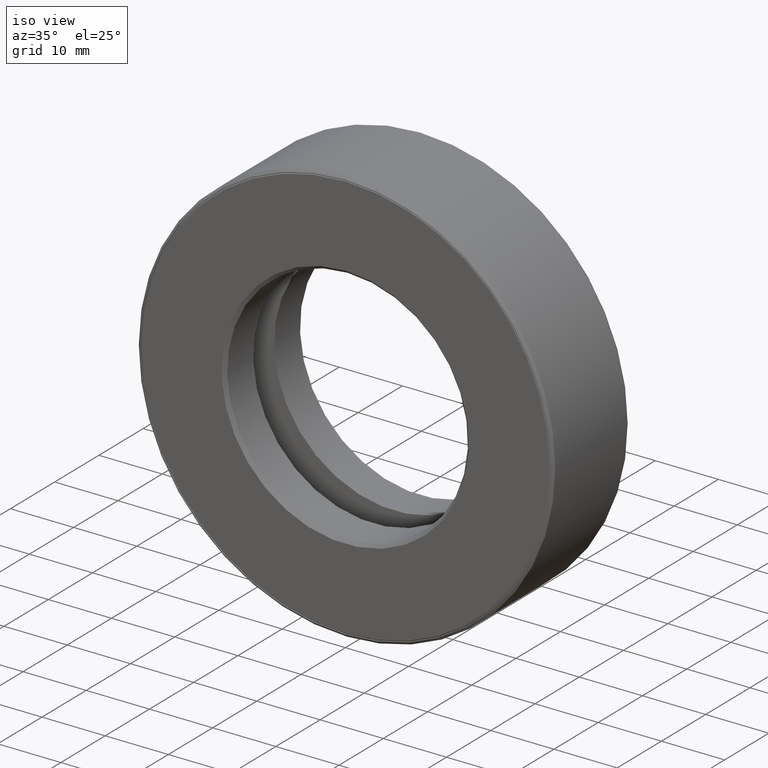
[diagram: clean part render]
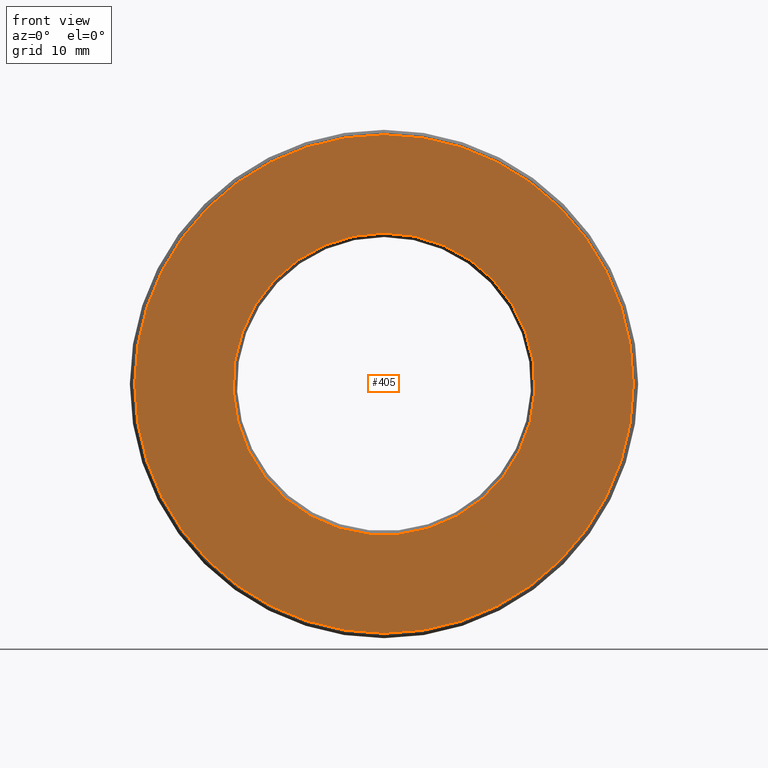
[diagram: tour spotlight — one face highlighted and labeled with its STEP entity id]
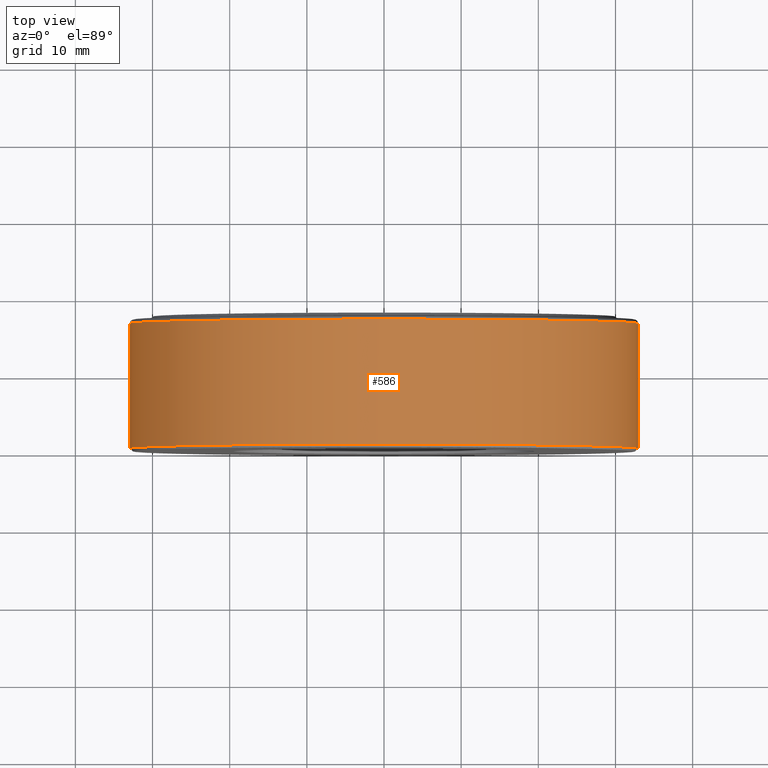
[diagram: tour spotlight — one face highlighted and labeled with its STEP entity id]
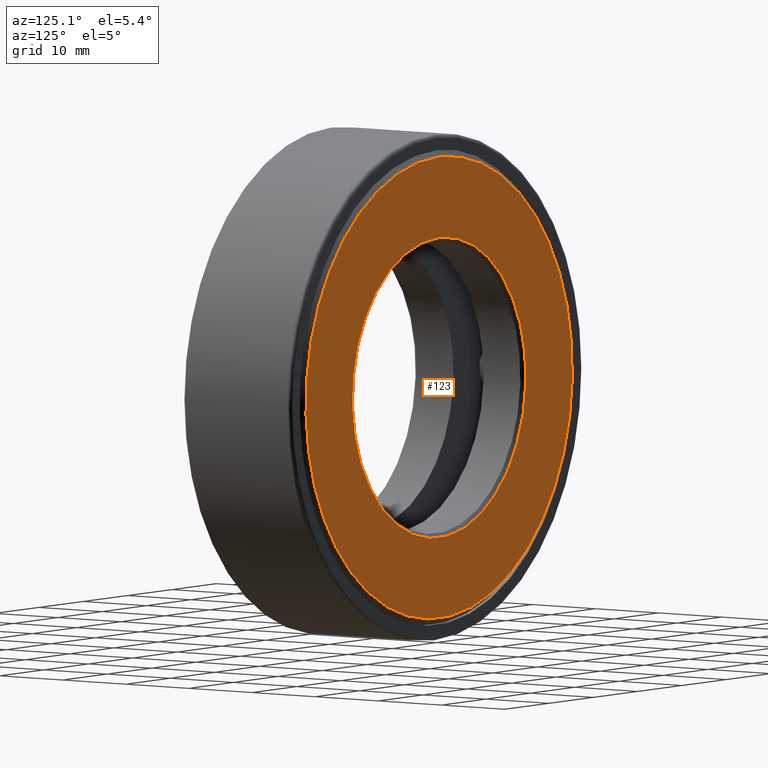
[diagram: tour spotlight — one face highlighted and labeled with its STEP entity id]
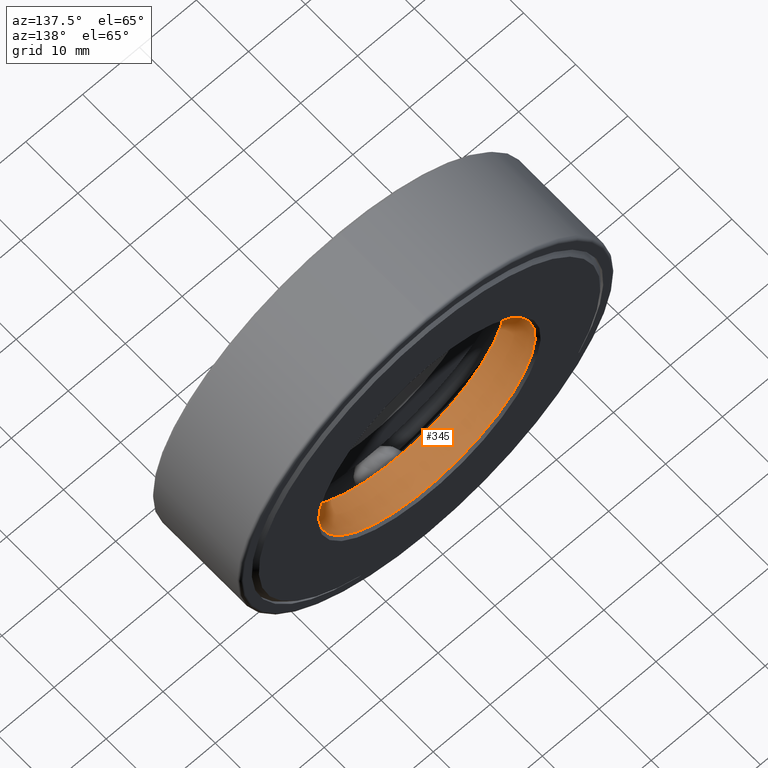
[diagram: tour spotlight — one face highlighted and labeled with its STEP entity id]
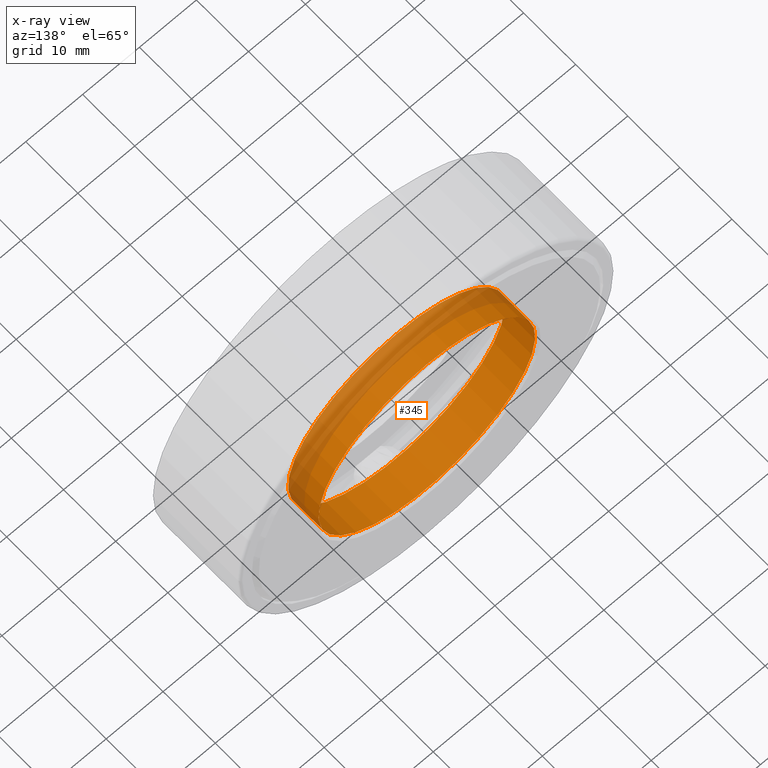
[diagram: x-ray of the same camera — body ghosted, this tour face saturated]
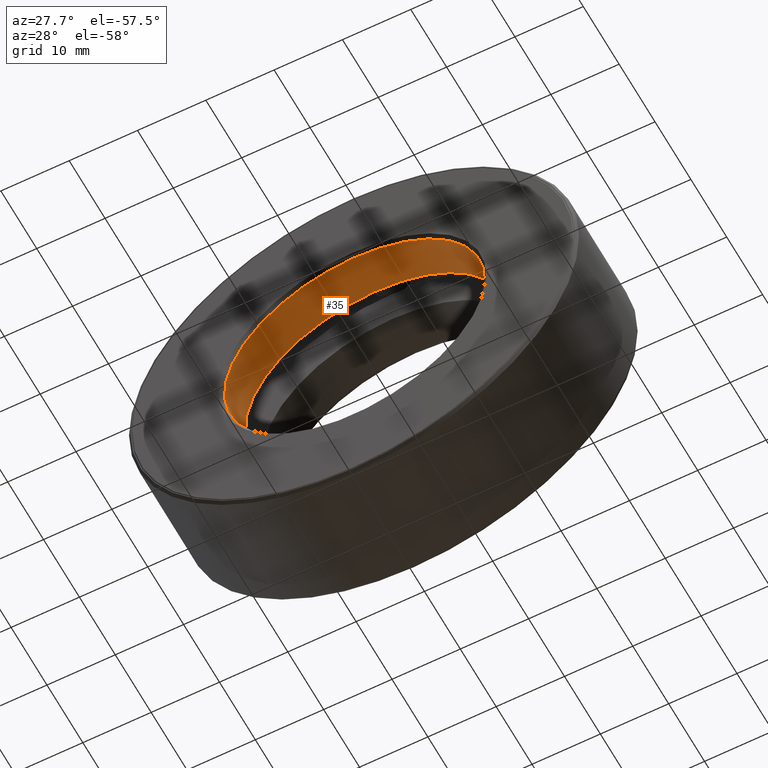
[diagram: tour spotlight — one face highlighted and labeled with its STEP entity id]
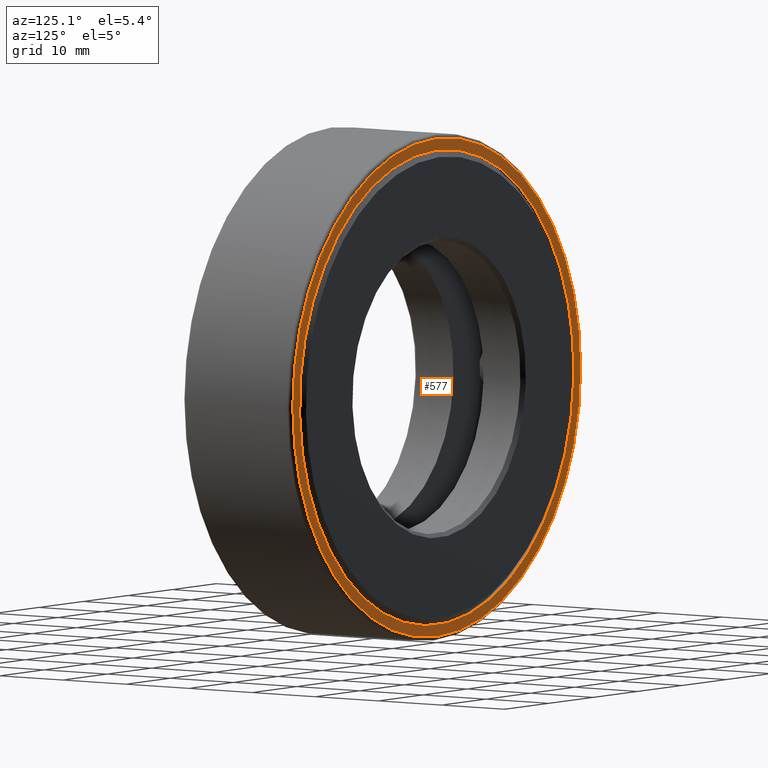
[diagram: tour spotlight — one face highlighted and labeled with its STEP entity id]
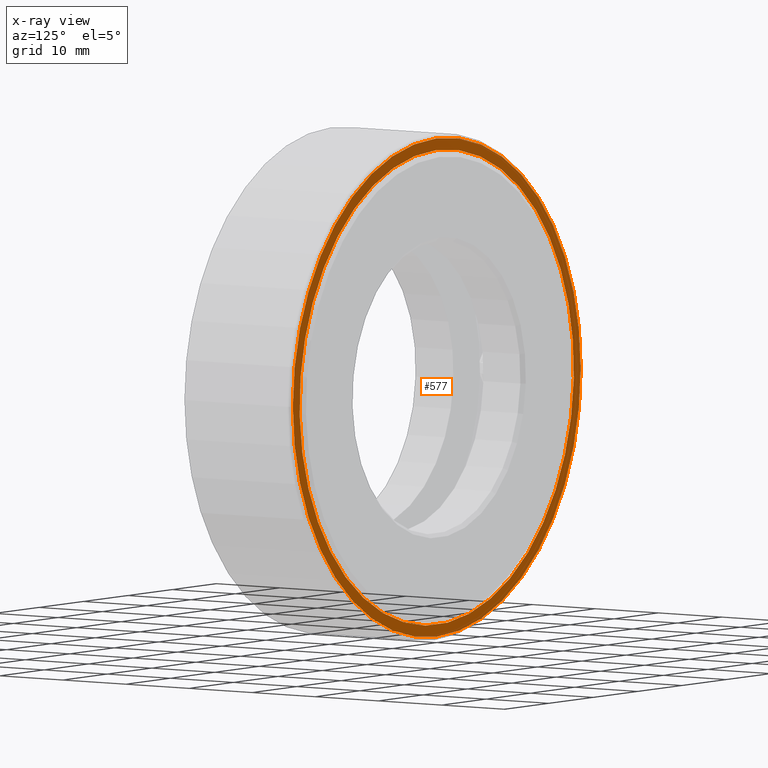
[diagram: x-ray of the same camera — body ghosted, this tour face saturated]
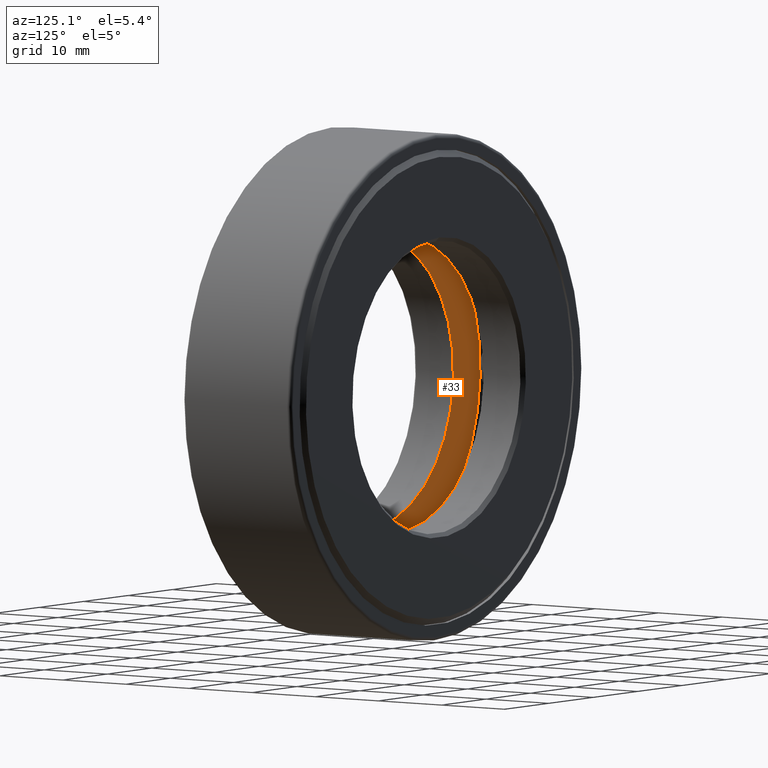
[diagram: tour spotlight — one face highlighted and labeled with its STEP entity id]
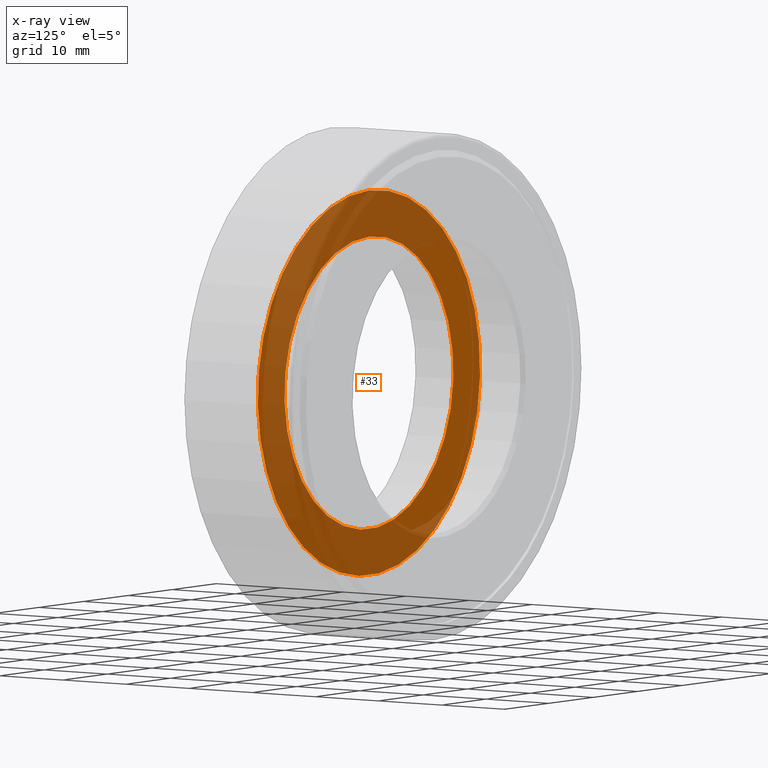
[diagram: x-ray of the same camera — body ghosted, this tour face saturated]
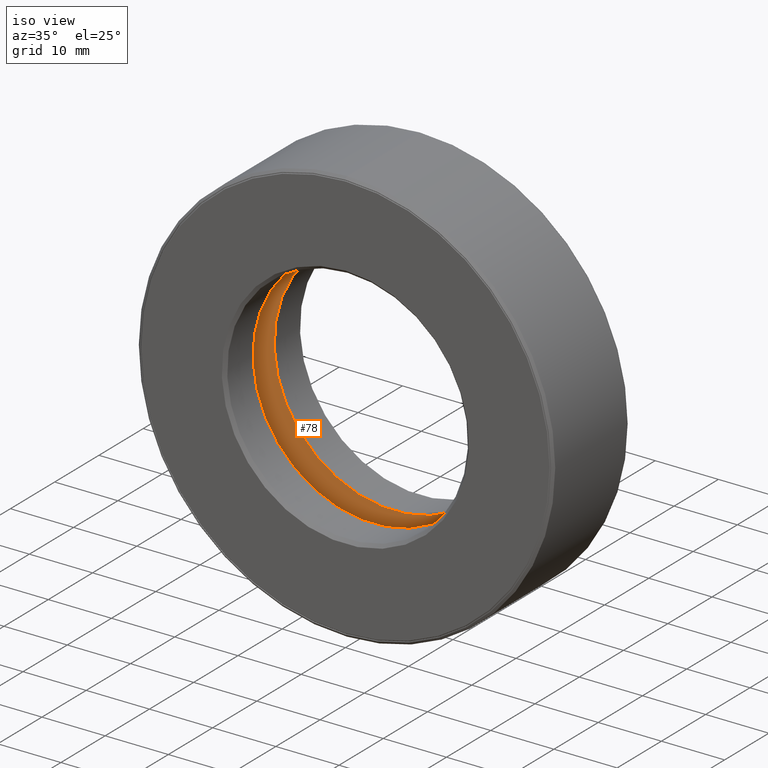
[diagram: tour spotlight — one face highlighted and labeled with its STEP entity id]
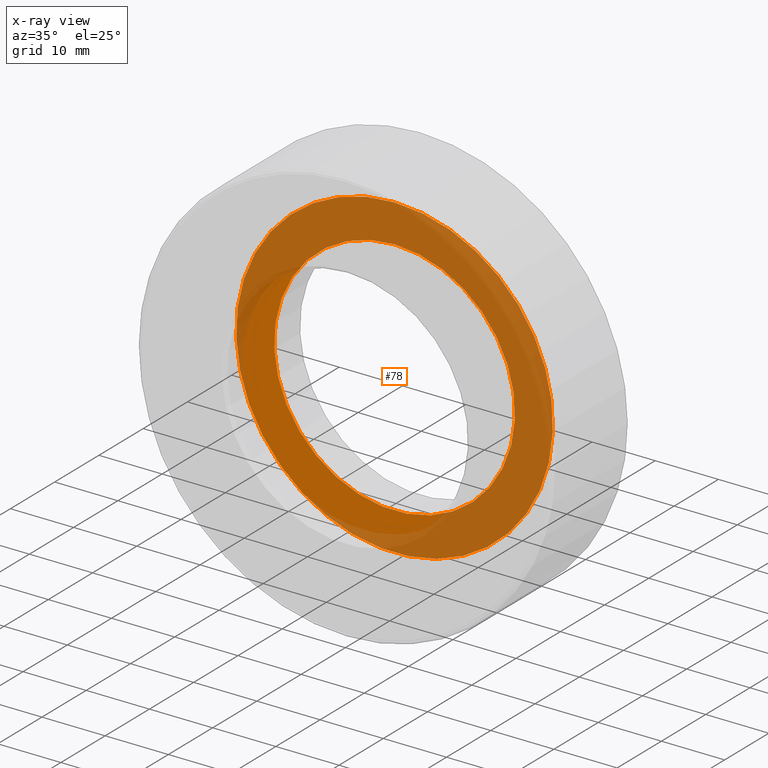
[diagram: x-ray of the same camera — body ghosted, this tour face saturated]
A machine part: a face-by-face anatomy tour. The part has 28 B-rep faces; the first image is the clean iso view, then the 8 largest visible faces are spotlighted one at a time (largest first), each with its STEP entity span.

Face 1 — front view, entity #405. In plain terms, the highlighted planar face has unit normal (-0, 1, 0).
Definition (entity closure, byte-faithful):
#38 = VERTEX_POINT ( 'NONE', #463 ) ;
#117 = EDGE_LOOP ( 'NONE', ( #387 ) ) ;
#132 = EDGE_LOOP ( 'NONE', ( #389 ) ) ;
#158 = DIRECTION ( 'NONE',  ( 0.0000000000000000000, 0.0000000000000000000, 1.000000000000000000 ) ) ;
#164 = PLANE ( 'NONE',  #444 ) ;
#166 = FACE_BOUND ( 'NONE', #117, .T. ) ;
#186 = CARTESIAN_POINT ( 'NONE',  ( 0.0000000000000000000, -6.936332796413168700E-017, 1.271874999999999900 ) ) ;
#198 = DIRECTION ( 'NONE',  ( 0.0000000000000000000, 0.0000000000000000000, 1.000000000000000000 ) ) ;
#199 = CARTESIAN_POINT ( 'NONE',  ( 0.0000000000000000000, 0.0000000000000000000, 0.0000000000000000000 ) ) ;
#240 = DIRECTION ( 'NONE',  ( -0.0000000000000000000, 1.000000000000000000, 0.0000000000000000000 ) ) ;
#261 = CIRCLE ( 'NONE', #352, 1.271874999999999900 ) ;
#274 = VERTEX_POINT ( 'NONE', #186 ) ;
#288 = CARTESIAN_POINT ( 'NONE',  ( -1.470819718715328300E-032, -3.468166398206584400E-017, 0.0000000000000000000 ) ) ;
#291 = DIRECTION ( 'NONE',  ( 0.0000000000000000000, 0.0000000000000000000, 1.000000000000000000 ) ) ;
#316 = AXIS2_PLACEMENT_3D ( 'NONE', #199, #432, #158 ) ;
#352 = AXIS2_PLACEMENT_3D ( 'NONE', #473, #574, #198 ) ;
#387 = ORIENTED_EDGE ( 'NONE', *, *, #447, .T. ) ;
#389 = ORIENTED_EDGE ( 'NONE', *, *, #433, .F. ) ;
#405 = ADVANCED_FACE ( 'NONE', ( #535, #166 ), #164, .F. ) ;
#432 = DIRECTION ( 'NONE',  ( -0.0000000000000000000, 1.000000000000000000, -0.0000000000000000000 ) ) ;
#433 = EDGE_CURVE ( 'NONE', #274, #274, #261, .T. ) ;
#444 = AXIS2_PLACEMENT_3D ( 'NONE', #288, #240, #291 ) ;
#447 = EDGE_CURVE ( 'NONE', #38, #38, #542, .T. ) ;
#463 = CARTESIAN_POINT ( 'NONE',  ( 0.0000000000000000000, 0.0000000000000000000, 0.7700000000000002400 ) ) ;
#473 = CARTESIAN_POINT ( 'NONE',  ( 0.0000000000000000000, -6.936332796413168700E-017, 0.0000000000000000000 ) ) ;
#535 = FACE_OUTER_BOUND ( 'NONE', #132, .T. ) ;
#542 = CIRCLE ( 'NONE', #316, 0.7700000000000002400 ) ;
#574 = DIRECTION ( 'NONE',  ( -0.0000000000000000000, 1.000000000000000000, -0.0000000000000000000 ) ) ;

Face 2 — top view, entity #586. In plain terms, the highlighted cylindrical surface (bore or boss wall) has radius 32.9406 mm, axis along (-0, 1, -0).
Definition (entity closure, byte-faithful):
#1 = DIRECTION ( 'NONE',  ( 0.0000000000000000000, 0.0000000000000000000, 1.000000000000000000 ) ) ;
#61 = DIRECTION ( 'NONE',  ( -0.0000000000000000000, 1.000000000000000000, -0.0000000000000000000 ) ) ;
#74 = CARTESIAN_POINT ( 'NONE',  ( 0.0000000000000000000, 0.0000000000000000000, 0.0000000000000000000 ) ) ;
#88 = CARTESIAN_POINT ( 'NONE',  ( 0.0000000000000000000, 0.6524999999999997500, 1.296875000000000000 ) ) ;
#106 = CARTESIAN_POINT ( 'NONE',  ( 0.0000000000000000000, 0.6524999999999997500, 0.0000000000000000000 ) ) ;
#116 = CARTESIAN_POINT ( 'NONE',  ( 0.0000000000000000000, 0.01499999999999984000, 1.296875000000000000 ) ) ;
#173 = AXIS2_PLACEMENT_3D ( 'NONE', #330, #195, #1 ) ;
#180 = ORIENTED_EDGE ( 'NONE', *, *, #317, .T. ) ;
#182 = AXIS2_PLACEMENT_3D ( 'NONE', #106, #61, #478 ) ;
#195 = DIRECTION ( 'NONE',  ( -0.0000000000000000000, 1.000000000000000000, -0.0000000000000000000 ) ) ;
#213 = DIRECTION ( 'NONE',  ( 0.0000000000000000000, 0.0000000000000000000, 1.000000000000000000 ) ) ;
#216 = FACE_OUTER_BOUND ( 'NONE', #509, .T. ) ;
#249 = DIRECTION ( 'NONE',  ( -0.0000000000000000000, 1.000000000000000000, -0.0000000000000000000 ) ) ;
#267 = CIRCLE ( 'NONE', #173, 1.296875000000000000 ) ;
#293 = VERTEX_POINT ( 'NONE', #116 ) ;
#311 = CYLINDRICAL_SURFACE ( 'NONE', #598, 1.296875000000000000 ) ;
#317 = EDGE_CURVE ( 'NONE', #293, #293, #267, .T. ) ;
#330 = CARTESIAN_POINT ( 'NONE',  ( 0.0000000000000000000, 0.01499999999999984000, 0.0000000000000000000 ) ) ;
#340 = FACE_OUTER_BOUND ( 'NONE', #600, .T. ) ;
#412 = EDGE_CURVE ( 'NONE', #571, #571, #579, .T. ) ;
#478 = DIRECTION ( 'NONE',  ( 0.0000000000000000000, 0.0000000000000000000, 1.000000000000000000 ) ) ;
#509 = EDGE_LOOP ( 'NONE', ( #180 ) ) ;
#571 = VERTEX_POINT ( 'NONE', #88 ) ;
#575 = ORIENTED_EDGE ( 'NONE', *, *, #412, .F. ) ;
#579 = CIRCLE ( 'NONE', #182, 1.296875000000000000 ) ;
#586 = ADVANCED_FACE ( 'NONE', ( #340, #216 ), #311, .T. ) ;
#598 = AXIS2_PLACEMENT_3D ( 'NONE', #74, #249, #213 ) ;
#600 = EDGE_LOOP ( 'NONE', ( #575 ) ) ;

Face 3 — auxiliary view, entity #123. In plain terms, the highlighted planar face has unit normal (-0, 1, 0).
Definition (entity closure, byte-faithful):
#6 = DIRECTION ( 'NONE',  ( -0.0000000000000000000, 1.000000000000000000, -0.0000000000000000000 ) ) ;
#7 = ORIENTED_EDGE ( 'NONE', *, *, #381, .T. ) ;
#14 = DIRECTION ( 'NONE',  ( 0.0000000000000000000, 0.0000000000000000000, 1.000000000000000000 ) ) ;
#42 = AXIS2_PLACEMENT_3D ( 'NONE', #236, #6, #14 ) ;
#48 = DIRECTION ( 'NONE',  ( 0.0000000000000000000, 0.0000000000000000000, 1.000000000000000000 ) ) ;
#79 = EDGE_LOOP ( 'NONE', ( #7 ) ) ;
#86 = CIRCLE ( 'NONE', #42, 0.7700000000000003500 ) ;
#94 = FACE_BOUND ( 'NONE', #369, .T. ) ;
#111 = CIRCLE ( 'NONE', #150, 1.181875000000000000 ) ;
#123 = ADVANCED_FACE ( 'NONE', ( #559, #94 ), #320, .T. ) ;
#150 = AXIS2_PLACEMENT_3D ( 'NONE', #339, #242, #342 ) ;
#222 = CARTESIAN_POINT ( 'NONE',  ( 0.0000000000000000000, 0.6875000000000000000, 0.0000000000000000000 ) ) ;
#236 = CARTESIAN_POINT ( 'NONE',  ( 0.0000000000000000000, 0.6875000000000000000, 0.0000000000000000000 ) ) ;
#242 = DIRECTION ( 'NONE',  ( -0.0000000000000000000, 1.000000000000000000, -0.0000000000000000000 ) ) ;
#320 = PLANE ( 'NONE',  #400 ) ;
#339 = CARTESIAN_POINT ( 'NONE',  ( 0.0000000000000000000, 0.6875000000000000000, 0.0000000000000000000 ) ) ;
#342 = DIRECTION ( 'NONE',  ( 0.0000000000000000000, 0.0000000000000000000, 1.000000000000000000 ) ) ;
#358 = CARTESIAN_POINT ( 'NONE',  ( 0.0000000000000000000, 0.6875000000000000000, 1.181875000000000000 ) ) ;
#367 = DIRECTION ( 'NONE',  ( -0.0000000000000000000, 1.000000000000000000, 0.0000000000000000000 ) ) ;
#369 = EDGE_LOOP ( 'NONE', ( #492 ) ) ;
#381 = EDGE_CURVE ( 'NONE', #407, #407, #111, .T. ) ;
#391 = EDGE_CURVE ( 'NONE', #436, #436, #86, .T. ) ;
#400 = AXIS2_PLACEMENT_3D ( 'NONE', #222, #367, #48 ) ;
#407 = VERTEX_POINT ( 'NONE', #358 ) ;
#436 = VERTEX_POINT ( 'NONE', #499 ) ;
#492 = ORIENTED_EDGE ( 'NONE', *, *, #391, .F. ) ;
#499 = CARTESIAN_POINT ( 'NONE',  ( 0.0000000000000000000, 0.6875000000000000000, 0.7700000000000003500 ) ) ;
#559 = FACE_OUTER_BOUND ( 'NONE', #79, .T. ) ;

Face 4 — auxiliary view, entity #345. An x-ray twin of the same camera follows (body ghosted, this face saturated) — the face is partly hidden behind the body. In plain terms, the highlighted cylindrical surface (bore or boss wall) has radius 19.05 mm, axis along (-0, 1, -0).
Definition (entity closure, byte-faithful):
#8 = EDGE_CURVE ( 'NONE', #547, #547, #39, .T. ) ;
#32 = CARTESIAN_POINT ( 'NONE',  ( 0.0000000000000000000, 0.4375000000000000000, 0.0000000000000000000 ) ) ;
#39 = CIRCLE ( 'NONE', #539, 0.7500000000000002200 ) ;
#70 = ORIENTED_EDGE ( 'NONE', *, *, #8, .F. ) ;
#77 = DIRECTION ( 'NONE',  ( -0.0000000000000000000, 1.000000000000000000, -0.0000000000000000000 ) ) ;
#98 = EDGE_CURVE ( 'NONE', #519, #519, #534, .T. ) ;
#99 = CARTESIAN_POINT ( 'NONE',  ( 0.0000000000000000000, 0.0000000000000000000, 0.0000000000000000000 ) ) ;
#113 = FACE_OUTER_BOUND ( 'NONE', #275, .T. ) ;
#177 = CARTESIAN_POINT ( 'NONE',  ( 0.0000000000000000000, 0.6674999999999995400, 0.7500000000000002200 ) ) ;
#227 = FACE_OUTER_BOUND ( 'NONE', #238, .T. ) ;
#238 = EDGE_LOOP ( 'NONE', ( #399 ) ) ;
#264 = CARTESIAN_POINT ( 'NONE',  ( 0.0000000000000000000, 0.6674999999999995400, 0.0000000000000000000 ) ) ;
#275 = EDGE_LOOP ( 'NONE', ( #70 ) ) ;
#301 = CARTESIAN_POINT ( 'NONE',  ( 0.0000000000000000000, 0.4375000000000000000, 0.7500000000000002200 ) ) ;
#318 = DIRECTION ( 'NONE',  ( 0.0000000000000000000, 0.0000000000000000000, 1.000000000000000000 ) ) ;
#345 = ADVANCED_FACE ( 'NONE', ( #227, #113 ), #421, .F. ) ;
#375 = AXIS2_PLACEMENT_3D ( 'NONE', #99, #468, #525 ) ;
#399 = ORIENTED_EDGE ( 'NONE', *, *, #98, .T. ) ;
#421 = CYLINDRICAL_SURFACE ( 'NONE', #375, 0.7500000000000002200 ) ;
#468 = DIRECTION ( 'NONE',  ( -0.0000000000000000000, 1.000000000000000000, -0.0000000000000000000 ) ) ;
#498 = DIRECTION ( 'NONE',  ( 0.0000000000000000000, 0.0000000000000000000, 1.000000000000000000 ) ) ;
#519 = VERTEX_POINT ( 'NONE', #177 ) ;
#525 = DIRECTION ( 'NONE',  ( 0.0000000000000000000, 0.0000000000000000000, 1.000000000000000000 ) ) ;
#534 = CIRCLE ( 'NONE', #593, 0.7500000000000002200 ) ;
#539 = AXIS2_PLACEMENT_3D ( 'NONE', #32, #77, #498 ) ;
#547 = VERTEX_POINT ( 'NONE', #301 ) ;
#593 = AXIS2_PLACEMENT_3D ( 'NONE', #264, #595, #318 ) ;
#595 = DIRECTION ( 'NONE',  ( -0.0000000000000000000, 1.000000000000000000, -0.0000000000000000000 ) ) ;

Face 5 — auxiliary view, entity #35. In plain terms, the highlighted cylindrical surface (bore or boss wall) has radius 19.05 mm, axis along (-0, 1, -0).
Definition (entity closure, byte-faithful):
#35 = ADVANCED_FACE ( 'NONE', ( #520, #241 ), #341, .F. ) ;
#49 = CARTESIAN_POINT ( 'NONE',  ( 0.0000000000000000000, 0.2499999999999999700, 0.0000000000000000000 ) ) ;
#80 = CIRCLE ( 'NONE', #488, 0.7500000000000001100 ) ;
#84 = DIRECTION ( 'NONE',  ( -0.0000000000000000000, 1.000000000000000000, -0.0000000000000000000 ) ) ;
#114 = VERTEX_POINT ( 'NONE', #380 ) ;
#120 = CIRCLE ( 'NONE', #331, 0.7500000000000002200 ) ;
#136 = CARTESIAN_POINT ( 'NONE',  ( 0.0000000000000000000, 0.0000000000000000000, 0.0000000000000000000 ) ) ;
#172 = DIRECTION ( 'NONE',  ( -0.0000000000000000000, 1.000000000000000000, -0.0000000000000000000 ) ) ;
#194 = EDGE_LOOP ( 'NONE', ( #518 ) ) ;
#202 = VERTEX_POINT ( 'NONE', #394 ) ;
#241 = FACE_OUTER_BOUND ( 'NONE', #419, .T. ) ;
#279 = EDGE_CURVE ( 'NONE', #202, #202, #120, .T. ) ;
#331 = AXIS2_PLACEMENT_3D ( 'NONE', #49, #383, #562 ) ;
#341 = CYLINDRICAL_SURFACE ( 'NONE', #564, 0.7500000000000002200 ) ;
#344 = DIRECTION ( 'NONE',  ( 0.0000000000000000000, 0.0000000000000000000, 1.000000000000000000 ) ) ;
#351 = ORIENTED_EDGE ( 'NONE', *, *, #279, .T. ) ;
#380 = CARTESIAN_POINT ( 'NONE',  ( 0.0000000000000000000, 0.02000000000000046900, 0.7500000000000001100 ) ) ;
#383 = DIRECTION ( 'NONE',  ( -0.0000000000000000000, 1.000000000000000000, -0.0000000000000000000 ) ) ;
#394 = CARTESIAN_POINT ( 'NONE',  ( 0.0000000000000000000, 0.2499999999999999700, 0.7500000000000002200 ) ) ;
#415 = DIRECTION ( 'NONE',  ( 0.0000000000000000000, 0.0000000000000000000, 1.000000000000000000 ) ) ;
#419 = EDGE_LOOP ( 'NONE', ( #351 ) ) ;
#446 = CARTESIAN_POINT ( 'NONE',  ( 0.0000000000000000000, 0.02000000000000046900, 0.0000000000000000000 ) ) ;
#488 = AXIS2_PLACEMENT_3D ( 'NONE', #446, #172, #344 ) ;
#518 = ORIENTED_EDGE ( 'NONE', *, *, #555, .F. ) ;
#520 = FACE_OUTER_BOUND ( 'NONE', #194, .T. ) ;
#555 = EDGE_CURVE ( 'NONE', #114, #114, #80, .T. ) ;
#562 = DIRECTION ( 'NONE',  ( 0.0000000000000000000, 0.0000000000000000000, 1.000000000000000000 ) ) ;
#564 = AXIS2_PLACEMENT_3D ( 'NONE', #136, #84, #415 ) ;

Face 6 — auxiliary view, entity #577. An x-ray twin of the same camera follows (body ghosted, this face saturated) — the face is partly hidden behind the body. In plain terms, the highlighted planar face has unit normal (0, -1, 0).
Definition (entity closure, byte-faithful):
#4 = CARTESIAN_POINT ( 'NONE',  ( 0.0000000000000000000, 0.6724999999999998800, 0.0000000000000000000 ) ) ;
#19 = CIRCLE ( 'NONE', #76, 1.216875000000000200 ) ;
#37 = ORIENTED_EDGE ( 'NONE', *, *, #423, .T. ) ;
#51 = VERTEX_POINT ( 'NONE', #90 ) ;
#76 = AXIS2_PLACEMENT_3D ( 'NONE', #4, #97, #145 ) ;
#90 = CARTESIAN_POINT ( 'NONE',  ( 0.0000000000000000000, 0.6724999999999998800, 1.276875000000000000 ) ) ;
#97 = DIRECTION ( 'NONE',  ( -0.0000000000000000000, 1.000000000000000000, -0.0000000000000000000 ) ) ;
#105 = ORIENTED_EDGE ( 'NONE', *, *, #235, .F. ) ;
#115 = DIRECTION ( 'NONE',  ( 0.0000000000000000000, 0.0000000000000000000, 1.000000000000000000 ) ) ;
#126 = PLANE ( 'NONE',  #409 ) ;
#145 = DIRECTION ( 'NONE',  ( 0.0000000000000000000, 0.0000000000000000000, 1.000000000000000000 ) ) ;
#205 = DIRECTION ( 'NONE',  ( -0.0000000000000000000, 1.000000000000000000, -0.0000000000000000000 ) ) ;
#235 = EDGE_CURVE ( 'NONE', #460, #460, #19, .T. ) ;
#273 = AXIS2_PLACEMENT_3D ( 'NONE', #529, #205, #115 ) ;
#276 = CIRCLE ( 'NONE', #273, 1.276875000000000000 ) ;
#346 = CARTESIAN_POINT ( 'NONE',  ( 0.0000000000000000000, 0.6724999999999998800, 0.0000000000000000000 ) ) ;
#409 = AXIS2_PLACEMENT_3D ( 'NONE', #346, #443, #543 ) ;
#423 = EDGE_CURVE ( 'NONE', #51, #51, #276, .T. ) ;
#443 = DIRECTION ( 'NONE',  ( 0.0000000000000000000, -1.000000000000000000, 0.0000000000000000000 ) ) ;
#460 = VERTEX_POINT ( 'NONE', #490 ) ;
#475 = EDGE_LOOP ( 'NONE', ( #37 ) ) ;
#484 = FACE_OUTER_BOUND ( 'NONE', #475, .T. ) ;
#490 = CARTESIAN_POINT ( 'NONE',  ( 0.0000000000000000000, 0.6724999999999998800, 1.216875000000000200 ) ) ;
#529 = CARTESIAN_POINT ( 'NONE',  ( 0.0000000000000000000, 0.6724999999999998800, 0.0000000000000000000 ) ) ;
#543 = DIRECTION ( 'NONE',  ( 0.0000000000000000000, -0.0000000000000000000, -1.000000000000000000 ) ) ;
#577 = ADVANCED_FACE ( 'NONE', ( #604, #484 ), #126, .F. ) ;
#589 = EDGE_LOOP ( 'NONE', ( #105 ) ) ;
#604 = FACE_BOUND ( 'NONE', #589, .T. ) ;

Face 7 — auxiliary view, entity #33. An x-ray twin of the same camera follows (body ghosted, this face saturated) — the face is partly hidden behind the body. In plain terms, the highlighted planar face has unit normal (0, -1, 0).
Definition (entity closure, byte-faithful):
#33 = ADVANCED_FACE ( 'NONE', ( #548, #148 ), #218, .F. ) ;
#49 = CARTESIAN_POINT ( 'NONE',  ( 0.0000000000000000000, 0.2499999999999999700, 0.0000000000000000000 ) ) ;
#91 = AXIS2_PLACEMENT_3D ( 'NONE', #580, #122, #402 ) ;
#102 = CIRCLE ( 'NONE', #91, 0.9866250000000003100 ) ;
#120 = CIRCLE ( 'NONE', #331, 0.7500000000000002200 ) ;
#122 = DIRECTION ( 'NONE',  ( -0.0000000000000000000, 1.000000000000000000, -0.0000000000000000000 ) ) ;
#135 = AXIS2_PLACEMENT_3D ( 'NONE', #257, #312, #322 ) ;
#148 = FACE_OUTER_BOUND ( 'NONE', #425, .T. ) ;
#188 = EDGE_LOOP ( 'NONE', ( #364 ) ) ;
#202 = VERTEX_POINT ( 'NONE', #394 ) ;
#218 = PLANE ( 'NONE',  #135 ) ;
#257 = CARTESIAN_POINT ( 'NONE',  ( -7.215657669477718100E-017, 0.2499999999999999200, 0.0000000000000000000 ) ) ;
#279 = EDGE_CURVE ( 'NONE', #202, #202, #120, .T. ) ;
#312 = DIRECTION ( 'NONE',  ( 0.0000000000000000000, -1.000000000000000000, 0.0000000000000000000 ) ) ;
#314 = VERTEX_POINT ( 'NONE', #472 ) ;
#322 = DIRECTION ( 'NONE',  ( 0.0000000000000000000, -0.0000000000000000000, -1.000000000000000000 ) ) ;
#331 = AXIS2_PLACEMENT_3D ( 'NONE', #49, #383, #562 ) ;
#364 = ORIENTED_EDGE ( 'NONE', *, *, #279, .F. ) ;
#382 = ORIENTED_EDGE ( 'NONE', *, *, #506, .T. ) ;
#383 = DIRECTION ( 'NONE',  ( -0.0000000000000000000, 1.000000000000000000, -0.0000000000000000000 ) ) ;
#394 = CARTESIAN_POINT ( 'NONE',  ( 0.0000000000000000000, 0.2499999999999999700, 0.7500000000000002200 ) ) ;
#402 = DIRECTION ( 'NONE',  ( 0.0000000000000000000, 0.0000000000000000000, 1.000000000000000000 ) ) ;
#425 = EDGE_LOOP ( 'NONE', ( #382 ) ) ;
#472 = CARTESIAN_POINT ( 'NONE',  ( 0.0000000000000000000, 0.2499999999999998900, 0.9866250000000003100 ) ) ;
#506 = EDGE_CURVE ( 'NONE', #314, #314, #102, .T. ) ;
#548 = FACE_BOUND ( 'NONE', #188, .T. ) ;
#562 = DIRECTION ( 'NONE',  ( 0.0000000000000000000, 0.0000000000000000000, 1.000000000000000000 ) ) ;
#580 = CARTESIAN_POINT ( 'NONE',  ( 0.0000000000000000000, 0.2499999999999998900, 0.0000000000000000000 ) ) ;

Face 8 — iso view, entity #78. An x-ray twin of the same camera follows (body ghosted, this face saturated) — the face is partly hidden behind the body. In plain terms, the highlighted planar face has unit normal (0, -1, 0).
Definition (entity closure, byte-faithful):
#8 = EDGE_CURVE ( 'NONE', #547, #547, #39, .T. ) ;
#27 = AXIS2_PLACEMENT_3D ( 'NONE', #599, #43, #224 ) ;
#29 = EDGE_LOOP ( 'NONE', ( #550 ) ) ;
#32 = CARTESIAN_POINT ( 'NONE',  ( 0.0000000000000000000, 0.4375000000000000000, 0.0000000000000000000 ) ) ;
#39 = CIRCLE ( 'NONE', #539, 0.7500000000000002200 ) ;
#43 = DIRECTION ( 'NONE',  ( 0.0000000000000000000, -1.000000000000000000, 0.0000000000000000000 ) ) ;
#77 = DIRECTION ( 'NONE',  ( -0.0000000000000000000, 1.000000000000000000, -0.0000000000000000000 ) ) ;
#78 = ADVANCED_FACE ( 'NONE', ( #165, #217 ), #323, .T. ) ;
#129 = CIRCLE ( 'NONE', #305, 0.9866250000000003100 ) ;
#165 = FACE_BOUND ( 'NONE', #223, .T. ) ;
#210 = EDGE_CURVE ( 'NONE', #420, #420, #129, .T. ) ;
#217 = FACE_OUTER_BOUND ( 'NONE', #29, .T. ) ;
#223 = EDGE_LOOP ( 'NONE', ( #515 ) ) ;
#224 = DIRECTION ( 'NONE',  ( 0.0000000000000000000, -0.0000000000000000000, -1.000000000000000000 ) ) ;
#226 = DIRECTION ( 'NONE',  ( -0.0000000000000000000, 1.000000000000000000, -0.0000000000000000000 ) ) ;
#250 = CARTESIAN_POINT ( 'NONE',  ( 0.0000000000000000000, 0.4375000000000000000, 0.9866250000000003100 ) ) ;
#301 = CARTESIAN_POINT ( 'NONE',  ( 0.0000000000000000000, 0.4375000000000000000, 0.7500000000000002200 ) ) ;
#305 = AXIS2_PLACEMENT_3D ( 'NONE', #458, #226, #551 ) ;
#323 = PLANE ( 'NONE',  #27 ) ;
#420 = VERTEX_POINT ( 'NONE', #250 ) ;
#458 = CARTESIAN_POINT ( 'NONE',  ( 0.0000000000000000000, 0.4375000000000000000, 0.0000000000000000000 ) ) ;
#498 = DIRECTION ( 'NONE',  ( 0.0000000000000000000, 0.0000000000000000000, 1.000000000000000000 ) ) ;
#515 = ORIENTED_EDGE ( 'NONE', *, *, #8, .T. ) ;
#539 = AXIS2_PLACEMENT_3D ( 'NONE', #32, #77, #498 ) ;
#547 = VERTEX_POINT ( 'NONE', #301 ) ;
#550 = ORIENTED_EDGE ( 'NONE', *, *, #210, .F. ) ;
#551 = DIRECTION ( 'NONE',  ( 0.0000000000000000000, 0.0000000000000000000, 1.000000000000000000 ) ) ;
#599 = CARTESIAN_POINT ( 'NONE',  ( 0.0000000000000000000, 0.4375000000000000000, 0.0000000000000000000 ) ) ;